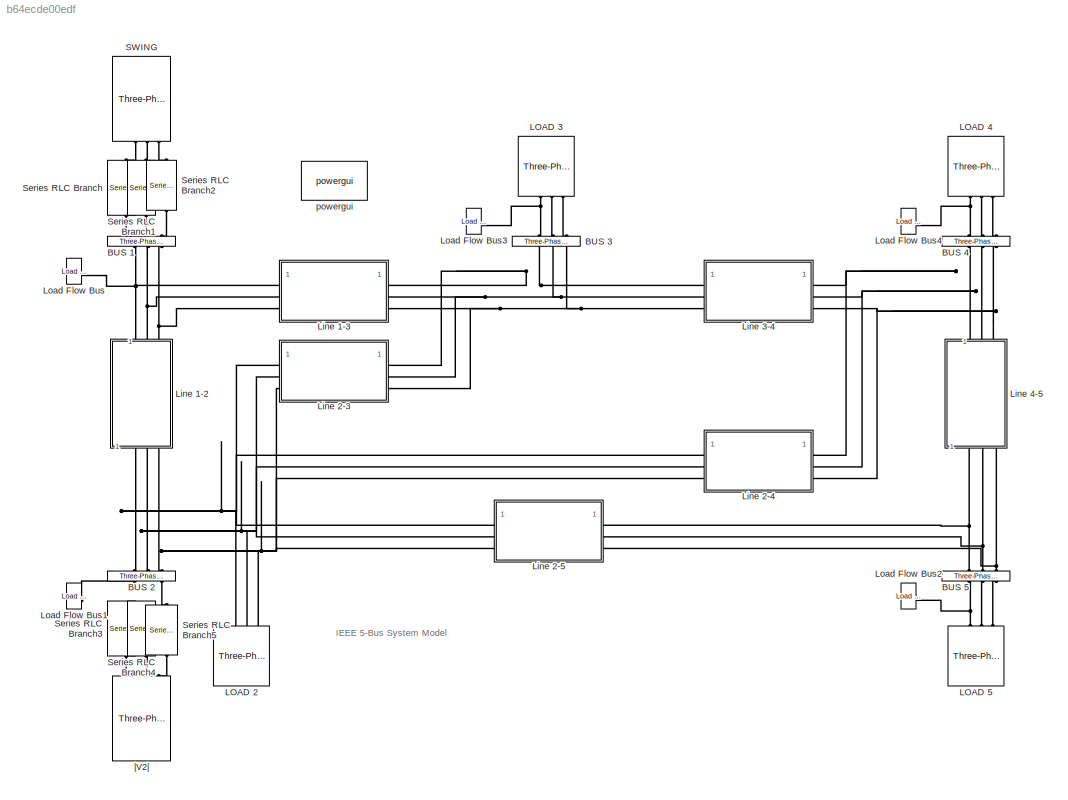
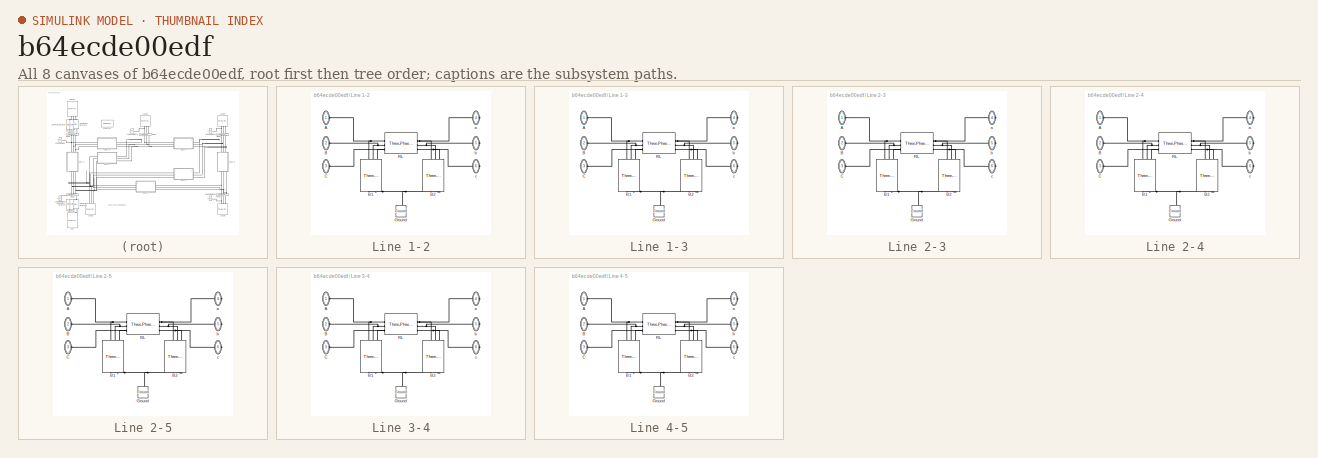
[diagram: thumbnail index - all 8 canvases of the model, root first then tree order]
MODEL slx_b64ecde00edf
KIND model
CONFIG AbsTol = auto
CONFIG EnableMultiTasking = on
CONFIG FixedStep = auto
CONFIG MaxStep = auto
CONFIG MinStep = auto
CONFIG RelTol = 1e-3
CONFIG SampleTimeConstraint = Unconstrained
CONFIG SolverName = VariableStepAuto
CONFIG StartTime = 0.0
CONFIG StopTime = 1
BLOCK [Reference] BUS 1  REF=spsThreePhaseVIMeasurementLib/Three-Phase
V-I Measurement
  LibrarySourceBlock = sps_lib/Sensors and Measurements/Three-Phase\nV-I Measurement
  NameLocation = left
  SourceBlock = spsThreePhaseVIMeasurementLib/Three-Phase\nV-I Measurement
  SourceType = Three-Phase VI Measurement
BLOCK [Reference] BUS 2  REF=spsThreePhaseVIMeasurementLib/Three-Phase
V-I Measurement
  LibrarySourceBlock = sps_lib/Sensors and Measurements/Three-Phase\nV-I Measurement
  NameLocation = left
  SourceBlock = spsThreePhaseVIMeasurementLib/Three-Phase\nV-I Measurement
  SourceType = Three-Phase VI Measurement
BLOCK [Reference] BUS 3  REF=spsThreePhaseVIMeasurementLib/Three-Phase
V-I Measurement
  LibrarySourceBlock = sps_lib/Sensors and Measurements/Three-Phase\nV-I Measurement
  NameLocation = left
  SourceBlock = spsThreePhaseVIMeasurementLib/Three-Phase\nV-I Measurement
  SourceType = Three-Phase VI Measurement
BLOCK [Reference] BUS 4  REF=spsThreePhaseVIMeasurementLib/Three-Phase
V-I Measurement
  LibrarySourceBlock = sps_lib/Sensors and Measurements/Three-Phase\nV-I Measurement
  NameLocation = left
  SourceBlock = spsThreePhaseVIMeasurementLib/Three-Phase\nV-I Measurement
  SourceType = Three-Phase VI Measurement
BLOCK [Reference] BUS 5  REF=spsThreePhaseVIMeasurementLib/Three-Phase
V-I Measurement
  LibrarySourceBlock = sps_lib/Sensors and Measurements/Three-Phase\nV-I Measurement
  NameLocation = left
  SourceBlock = spsThreePhaseVIMeasurementLib/Three-Phase\nV-I Measurement
  SourceType = Three-Phase VI Measurement
BLOCK [Reference] LOAD 2  REF=spsThreePhaseSeriesRLCLoadLib/Three-Phase
Series RLC Load
  AttributesFormatString = \n
  LibrarySourceBlock = sps_lib/Passives/Three-Phase\nSeries RLC Load
  NameLocation = right
  SourceBlock = spsThreePhaseSeriesRLCLoadLib/Three-Phase\nSeries RLC Load
  SourceType = Three-Phase Series RLC Load
BLOCK [Reference] LOAD 3  REF=spsThreePhaseSeriesRLCLoadLib/Three-Phase
Series RLC Load
  AttributesFormatString = \n
  LibrarySourceBlock = sps_lib/Passives/Three-Phase\nSeries RLC Load
  NameLocation = right
  SourceBlock = spsThreePhaseSeriesRLCLoadLib/Three-Phase\nSeries RLC Load
  SourceType = Three-Phase Series RLC Load
BLOCK [Reference] LOAD 4  REF=spsThreePhaseSeriesRLCLoadLib/Three-Phase
Series RLC Load
  AttributesFormatString = \n
  LibrarySourceBlock = sps_lib/Passives/Three-Phase\nSeries RLC Load
  NameLocation = right
  SourceBlock = spsThreePhaseSeriesRLCLoadLib/Three-Phase\nSeries RLC Load
  SourceType = Three-Phase Series RLC Load
BLOCK [Reference] LOAD 5  REF=spsThreePhaseSeriesRLCLoadLib/Three-Phase
Series RLC Load
  AttributesFormatString = \n
  LibrarySourceBlock = sps_lib/Passives/Three-Phase\nSeries RLC Load
  NameLocation = right
  SourceBlock = spsThreePhaseSeriesRLCLoadLib/Three-Phase\nSeries RLC Load
  SourceType = Three-Phase Series RLC Load
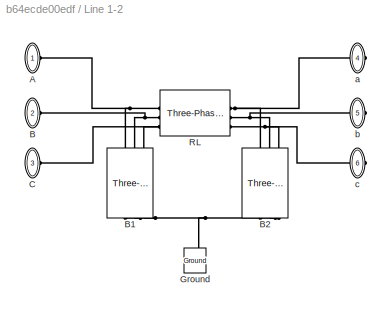
BLOCK [SubSystem] Line 1-2
  NameLocation = right
BLOCK [PMIOPort] Line 1-2/A
  NameLocation = top
  Side = Left
BLOCK [PMIOPort] Line 1-2/B
  NameLocation = top
  Port = 2
  Side = Left
BLOCK [Reference] Line 1-2/B1  REF=spsThreePhaseSeriesRLCBranchLib/Three-Phase
Series RLC Branch
  AttributesFormatString = \n
  LibrarySourceBlock = sps_lib/Passives/Three-Phase\nSeries RLC Branch
  NameLocation = left
  SourceBlock = spsThreePhaseSeriesRLCBranchLib/Three-Phase\nSeries RLC Branch
  SourceType = Three-Phase Series RLC Branch
BLOCK [Reference] Line 1-2/B2  REF=spsThreePhaseSeriesRLCBranchLib/Three-Phase
Series RLC Branch
  AttributesFormatString = \n
  LibrarySourceBlock = sps_lib/Passives/Three-Phase\nSeries RLC Branch
  NameLocation = left
  SourceBlock = spsThreePhaseSeriesRLCBranchLib/Three-Phase\nSeries RLC Branch
  SourceType = Three-Phase Series RLC Branch
BLOCK [PMIOPort] Line 1-2/C
  NameLocation = top
  Port = 3
  Side = Left
BLOCK [Reference] Line 1-2/Ground  REF=spsGroundLib/Ground
  LibrarySourceBlock = sps_lib/Utilities/Ground
  NameLocation = right
  SourceBlock = spsGroundLib/Ground
  SourceType = Ground
BLOCK [Reference] Line 1-2/RL  REF=spsThreePhaseSeriesRLCBranchLib/Three-Phase
Series RLC Branch
  AttributesFormatString = \n
  LibrarySourceBlock = sps_lib/Passives/Three-Phase\nSeries RLC Branch
  SourceBlock = spsThreePhaseSeriesRLCBranchLib/Three-Phase\nSeries RLC Branch
  SourceType = Three-Phase Series RLC Branch
BLOCK [PMIOPort] Line 1-2/a
  NameLocation = top
  Port = 4
  Side = Right
BLOCK [PMIOPort] Line 1-2/b
  NameLocation = top
  Port = 5
  Side = Right
BLOCK [PMIOPort] Line 1-2/c
  NameLocation = top
  Port = 6
  Side = Right
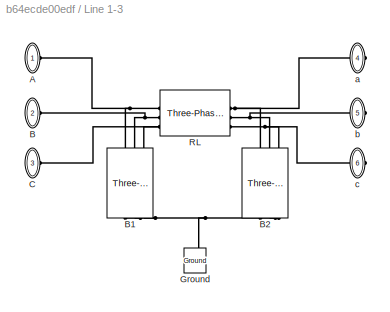
BLOCK [SubSystem] Line 1-3
BLOCK [PMIOPort] Line 1-3/A
  NameLocation = top
  Side = Left
BLOCK [PMIOPort] Line 1-3/B
  NameLocation = top
  Port = 2
  Side = Left
BLOCK [Reference] Line 1-3/B1  REF=spsThreePhaseSeriesRLCBranchLib/Three-Phase
Series RLC Branch
  AttributesFormatString = \n
  LibrarySourceBlock = sps_lib/Passives/Three-Phase\nSeries RLC Branch
  NameLocation = left
  SourceBlock = spsThreePhaseSeriesRLCBranchLib/Three-Phase\nSeries RLC Branch
  SourceType = Three-Phase Series RLC Branch
BLOCK [Reference] Line 1-3/B2  REF=spsThreePhaseSeriesRLCBranchLib/Three-Phase
Series RLC Branch
  AttributesFormatString = \n
  LibrarySourceBlock = sps_lib/Passives/Three-Phase\nSeries RLC Branch
  NameLocation = left
  SourceBlock = spsThreePhaseSeriesRLCBranchLib/Three-Phase\nSeries RLC Branch
  SourceType = Three-Phase Series RLC Branch
BLOCK [PMIOPort] Line 1-3/C
  NameLocation = top
  Port = 3
  Side = Left
BLOCK [Reference] Line 1-3/Ground  REF=spsGroundLib/Ground
  LibrarySourceBlock = sps_lib/Utilities/Ground
  NameLocation = right
  SourceBlock = spsGroundLib/Ground
  SourceType = Ground
BLOCK [Reference] Line 1-3/RL  REF=spsThreePhaseSeriesRLCBranchLib/Three-Phase
Series RLC Branch
  AttributesFormatString = \n
  LibrarySourceBlock = sps_lib/Passives/Three-Phase\nSeries RLC Branch
  SourceBlock = spsThreePhaseSeriesRLCBranchLib/Three-Phase\nSeries RLC Branch
  SourceType = Three-Phase Series RLC Branch
BLOCK [PMIOPort] Line 1-3/a
  NameLocation = top
  Port = 4
  Side = Right
BLOCK [PMIOPort] Line 1-3/b
  NameLocation = top
  Port = 5
  Side = Right
BLOCK [PMIOPort] Line 1-3/c
  NameLocation = top
  Port = 6
  Side = Right
BLOCK [SubSystem] Line 2-3
BLOCK [PMIOPort] Line 2-3/A
  NameLocation = top
  Side = Left
BLOCK [PMIOPort] Line 2-3/B
  NameLocation = top
  Port = 2
  Side = Left
BLOCK [Reference] Line 2-3/B1  REF=spsThreePhaseSeriesRLCBranchLib/Three-Phase
Series RLC Branch
  AttributesFormatString = \n
  LibrarySourceBlock = sps_lib/Passives/Three-Phase\nSeries RLC Branch
  NameLocation = left
  SourceBlock = spsThreePhaseSeriesRLCBranchLib/Three-Phase\nSeries RLC Branch
  SourceType = Three-Phase Series RLC Branch
BLOCK [Reference] Line 2-3/B2  REF=spsThreePhaseSeriesRLCBranchLib/Three-Phase
Series RLC Branch
  AttributesFormatString = \n
  LibrarySourceBlock = sps_lib/Passives/Three-Phase\nSeries RLC Branch
  NameLocation = left
  SourceBlock = spsThreePhaseSeriesRLCBranchLib/Three-Phase\nSeries RLC Branch
  SourceType = Three-Phase Series RLC Branch
BLOCK [PMIOPort] Line 2-3/C
  NameLocation = top
  Port = 3
  Side = Left
BLOCK [Reference] Line 2-3/Ground  REF=spsGroundLib/Ground
  LibrarySourceBlock = sps_lib/Utilities/Ground
  NameLocation = right
  SourceBlock = spsGroundLib/Ground
  SourceType = Ground
BLOCK [Reference] Line 2-3/RL  REF=spsThreePhaseSeriesRLCBranchLib/Three-Phase
Series RLC Branch
  AttributesFormatString = \n
  LibrarySourceBlock = sps_lib/Passives/Three-Phase\nSeries RLC Branch
  SourceBlock = spsThreePhaseSeriesRLCBranchLib/Three-Phase\nSeries RLC Branch
  SourceType = Three-Phase Series RLC Branch
BLOCK [PMIOPort] Line 2-3/a
  NameLocation = top
  Port = 4
  Side = Right
BLOCK [PMIOPort] Line 2-3/b
  NameLocation = top
  Port = 5
  Side = Right
BLOCK [PMIOPort] Line 2-3/c
  NameLocation = top
  Port = 6
  Side = Right
BLOCK [SubSystem] Line 2-4
BLOCK [PMIOPort] Line 2-4/A
  NameLocation = top
  Side = Left
BLOCK [PMIOPort] Line 2-4/B
  NameLocation = top
  Port = 2
  Side = Left
BLOCK [Reference] Line 2-4/B1  REF=spsThreePhaseSeriesRLCBranchLib/Three-Phase
Series RLC Branch
  AttributesFormatString = \n
  LibrarySourceBlock = sps_lib/Passives/Three-Phase\nSeries RLC Branch
  NameLocation = left
  SourceBlock = spsThreePhaseSeriesRLCBranchLib/Three-Phase\nSeries RLC Branch
  SourceType = Three-Phase Series RLC Branch
BLOCK [Reference] Line 2-4/B2  REF=spsThreePhaseSeriesRLCBranchLib/Three-Phase
Series RLC Branch
  AttributesFormatString = \n
  LibrarySourceBlock = sps_lib/Passives/Three-Phase\nSeries RLC Branch
  NameLocation = left
  SourceBlock = spsThreePhaseSeriesRLCBranchLib/Three-Phase\nSeries RLC Branch
  SourceType = Three-Phase Series RLC Branch
BLOCK [PMIOPort] Line 2-4/C
  NameLocation = top
  Port = 3
  Side = Left
BLOCK [Reference] Line 2-4/Ground  REF=spsGroundLib/Ground
  LibrarySourceBlock = sps_lib/Utilities/Ground
  NameLocation = right
  SourceBlock = spsGroundLib/Ground
  SourceType = Ground
BLOCK [Reference] Line 2-4/RL  REF=spsThreePhaseSeriesRLCBranchLib/Three-Phase
Series RLC Branch
  AttributesFormatString = \n
  LibrarySourceBlock = sps_lib/Passives/Three-Phase\nSeries RLC Branch
  SourceBlock = spsThreePhaseSeriesRLCBranchLib/Three-Phase\nSeries RLC Branch
  SourceType = Three-Phase Series RLC Branch
BLOCK [PMIOPort] Line 2-4/a
  NameLocation = top
  Port = 4
  Side = Right
BLOCK [PMIOPort] Line 2-4/b
  NameLocation = top
  Port = 5
  Side = Right
BLOCK [PMIOPort] Line 2-4/c
  NameLocation = top
  Port = 6
  Side = Right
BLOCK [SubSystem] Line 2-5
BLOCK [PMIOPort] Line 2-5/A
  NameLocation = top
  Side = Left
BLOCK [PMIOPort] Line 2-5/B
  NameLocation = top
  Port = 2
  Side = Left
BLOCK [Reference] Line 2-5/B1  REF=spsThreePhaseSeriesRLCBranchLib/Three-Phase
Series RLC Branch
  AttributesFormatString = \n
  LibrarySourceBlock = sps_lib/Passives/Three-Phase\nSeries RLC Branch
  NameLocation = left
  SourceBlock = spsThreePhaseSeriesRLCBranchLib/Three-Phase\nSeries RLC Branch
  SourceType = Three-Phase Series RLC Branch
BLOCK [Reference] Line 2-5/B2  REF=spsThreePhaseSeriesRLCBranchLib/Three-Phase
Series RLC Branch
  AttributesFormatString = \n
  LibrarySourceBlock = sps_lib/Passives/Three-Phase\nSeries RLC Branch
  NameLocation = left
  SourceBlock = spsThreePhaseSeriesRLCBranchLib/Three-Phase\nSeries RLC Branch
  SourceType = Three-Phase Series RLC Branch
BLOCK [PMIOPort] Line 2-5/C
  NameLocation = top
  Port = 3
  Side = Left
BLOCK [Reference] Line 2-5/Ground  REF=spsGroundLib/Ground
  LibrarySourceBlock = sps_lib/Utilities/Ground
  NameLocation = right
  SourceBlock = spsGroundLib/Ground
  SourceType = Ground
BLOCK [Reference] Line 2-5/RL  REF=spsThreePhaseSeriesRLCBranchLib/Three-Phase
Series RLC Branch
  AttributesFormatString = \n
  LibrarySourceBlock = sps_lib/Passives/Three-Phase\nSeries RLC Branch
  SourceBlock = spsThreePhaseSeriesRLCBranchLib/Three-Phase\nSeries RLC Branch
  SourceType = Three-Phase Series RLC Branch
BLOCK [PMIOPort] Line 2-5/a
  NameLocation = top
  Port = 4
  Side = Right
BLOCK [PMIOPort] Line 2-5/b
  NameLocation = top
  Port = 5
  Side = Right
BLOCK [PMIOPort] Line 2-5/c
  NameLocation = top
  Port = 6
  Side = Right
BLOCK [SubSystem] Line 3-4
BLOCK [PMIOPort] Line 3-4/A
  NameLocation = top
  Side = Left
BLOCK [PMIOPort] Line 3-4/B
  NameLocation = top
  Port = 2
  Side = Left
BLOCK [Reference] Line 3-4/B1  REF=spsThreePhaseSeriesRLCBranchLib/Three-Phase
Series RLC Branch
  AttributesFormatString = \n
  LibrarySourceBlock = sps_lib/Passives/Three-Phase\nSeries RLC Branch
  NameLocation = left
  SourceBlock = spsThreePhaseSeriesRLCBranchLib/Three-Phase\nSeries RLC Branch
  SourceType = Three-Phase Series RLC Branch
BLOCK [Reference] Line 3-4/B2  REF=spsThreePhaseSeriesRLCBranchLib/Three-Phase
Series RLC Branch
  AttributesFormatString = \n
  LibrarySourceBlock = sps_lib/Passives/Three-Phase\nSeries RLC Branch
  NameLocation = left
  SourceBlock = spsThreePhaseSeriesRLCBranchLib/Three-Phase\nSeries RLC Branch
  SourceType = Three-Phase Series RLC Branch
BLOCK [PMIOPort] Line 3-4/C
  NameLocation = top
  Port = 3
  Side = Left
BLOCK [Reference] Line 3-4/Ground  REF=spsGroundLib/Ground
  LibrarySourceBlock = sps_lib/Utilities/Ground
  NameLocation = right
  SourceBlock = spsGroundLib/Ground
  SourceType = Ground
BLOCK [Reference] Line 3-4/RL  REF=spsThreePhaseSeriesRLCBranchLib/Three-Phase
Series RLC Branch
  AttributesFormatString = \n
  LibrarySourceBlock = sps_lib/Passives/Three-Phase\nSeries RLC Branch
  SourceBlock = spsThreePhaseSeriesRLCBranchLib/Three-Phase\nSeries RLC Branch
  SourceType = Three-Phase Series RLC Branch
BLOCK [PMIOPort] Line 3-4/a
  NameLocation = top
  Port = 4
  Side = Right
BLOCK [PMIOPort] Line 3-4/b
  NameLocation = top
  Port = 5
  Side = Right
BLOCK [PMIOPort] Line 3-4/c
  NameLocation = top
  Port = 6
  Side = Right
BLOCK [SubSystem] Line 4-5
  NameLocation = right
BLOCK [PMIOPort] Line 4-5/A
  NameLocation = top
  Side = Left
BLOCK [PMIOPort] Line 4-5/B
  NameLocation = top
  Port = 2
  Side = Left
BLOCK [Reference] Line 4-5/B1  REF=spsThreePhaseSeriesRLCBranchLib/Three-Phase
Series RLC Branch
  AttributesFormatString = \n
  LibrarySourceBlock = sps_lib/Passives/Three-Phase\nSeries RLC Branch
  NameLocation = left
  SourceBlock = spsThreePhaseSeriesRLCBranchLib/Three-Phase\nSeries RLC Branch
  SourceType = Three-Phase Series RLC Branch
BLOCK [Reference] Line 4-5/B2  REF=spsThreePhaseSeriesRLCBranchLib/Three-Phase
Series RLC Branch
  AttributesFormatString = \n
  LibrarySourceBlock = sps_lib/Passives/Three-Phase\nSeries RLC Branch
  NameLocation = left
  SourceBlock = spsThreePhaseSeriesRLCBranchLib/Three-Phase\nSeries RLC Branch
  SourceType = Three-Phase Series RLC Branch
BLOCK [PMIOPort] Line 4-5/C
  NameLocation = top
  Port = 3
  Side = Left
BLOCK [Reference] Line 4-5/Ground  REF=spsGroundLib/Ground
  LibrarySourceBlock = sps_lib/Utilities/Ground
  NameLocation = right
  SourceBlock = spsGroundLib/Ground
  SourceType = Ground
BLOCK [Reference] Line 4-5/RL  REF=spsThreePhaseSeriesRLCBranchLib/Three-Phase
Series RLC Branch
  AttributesFormatString = \n
  LibrarySourceBlock = sps_lib/Passives/Three-Phase\nSeries RLC Branch
  SourceBlock = spsThreePhaseSeriesRLCBranchLib/Three-Phase\nSeries RLC Branch
  SourceType = Three-Phase Series RLC Branch
BLOCK [PMIOPort] Line 4-5/a
  NameLocation = top
  Port = 4
  Side = Right
BLOCK [PMIOPort] Line 4-5/b
  NameLocation = top
  Port = 5
  Side = Right
BLOCK [PMIOPort] Line 4-5/c
  NameLocation = top
  Port = 6
  Side = Right
BLOCK [Reference] Load Flow Bus  REF=spsLoadFlowBusLib/Load Flow Bus
  AttributesFormatString = %<ID>\n%<Vbase>V\n%<VLF>pu\n%<angleLF>deg.
  LibrarySourceBlock = sps_lib/Utilities/Load Flow Bus
  SourceBlock = spsLoadFlowBusLib/Load Flow Bus
  SourceType = Load Flow Bus
BLOCK [Reference] Load Flow Bus1  REF=spsLoadFlowBusLib/Load Flow Bus
  AttributesFormatString = %<ID>\n%<Vbase>V\n%<VLF>pu\n%<angleLF>deg.
  LibrarySourceBlock = sps_lib/Utilities/Load Flow Bus
  SourceBlock = spsLoadFlowBusLib/Load Flow Bus
  SourceType = Load Flow Bus
BLOCK [Reference] Load Flow Bus2  REF=spsLoadFlowBusLib/Load Flow Bus
  AttributesFormatString = %<ID>\n%<Vbase>V\n%<VLF>pu\n%<angleLF>deg.
  LibrarySourceBlock = sps_lib/Utilities/Load Flow Bus
  SourceBlock = spsLoadFlowBusLib/Load Flow Bus
  SourceType = Load Flow Bus
BLOCK [Reference] Load Flow Bus3  REF=spsLoadFlowBusLib/Load Flow Bus
  AttributesFormatString = %<ID>\n%<Vbase>V\n%<VLF>pu\n%<angleLF>deg.
  LibrarySourceBlock = sps_lib/Utilities/Load Flow Bus
  NameLocation = top
  SourceBlock = spsLoadFlowBusLib/Load Flow Bus
  SourceType = Load Flow Bus
BLOCK [Reference] Load Flow Bus4  REF=spsLoadFlowBusLib/Load Flow Bus
  AttributesFormatString = %<ID>\n%<Vbase>V\n%<VLF>pu\n%<angleLF>deg.
  LibrarySourceBlock = sps_lib/Utilities/Load Flow Bus
  NameLocation = top
  SourceBlock = spsLoadFlowBusLib/Load Flow Bus
  SourceType = Load Flow Bus
BLOCK [Reference] SWING  REF=spsThreePhaseSourceLib/Three-Phase Source
  LibrarySourceBlock = sps_lib/Sources/Three-Phase Source
  NameLocation = left
  SourceBlock = spsThreePhaseSourceLib/Three-Phase Source
  SourceType = Three-Phase Source
BLOCK [Reference] Series RLC Branch  REF=spsSeriesRLCBranchLib/Series RLC Branch
  LibrarySourceBlock = sps_lib/Passives/Series RLC Branch
  NameLocation = left
  SourceBlock = spsSeriesRLCBranchLib/Series RLC Branch
  SourceType = Series RLC Branch
BLOCK [Reference] Series RLC Branch1  REF=spsSeriesRLCBranchLib/Series RLC Branch
  LibrarySourceBlock = sps_lib/Passives/Series RLC Branch
  NameLocation = left
  SourceBlock = spsSeriesRLCBranchLib/Series RLC Branch
  SourceType = Series RLC Branch
BLOCK [Reference] Series RLC Branch2  REF=spsSeriesRLCBranchLib/Series RLC Branch
  LibrarySourceBlock = sps_lib/Passives/Series RLC Branch
  NameLocation = left
  SourceBlock = spsSeriesRLCBranchLib/Series RLC Branch
  SourceType = Series RLC Branch
BLOCK [Reference] Series RLC Branch3  REF=spsSeriesRLCBranchLib/Series RLC Branch
  LibrarySourceBlock = sps_lib/Passives/Series RLC Branch
  NameLocation = left
  SourceBlock = spsSeriesRLCBranchLib/Series RLC Branch
  SourceType = Series RLC Branch
BLOCK [Reference] Series RLC Branch4  REF=spsSeriesRLCBranchLib/Series RLC Branch
  LibrarySourceBlock = sps_lib/Passives/Series RLC Branch
  NameLocation = left
  SourceBlock = spsSeriesRLCBranchLib/Series RLC Branch
  SourceType = Series RLC Branch
BLOCK [Reference] Series RLC Branch5  REF=spsSeriesRLCBranchLib/Series RLC Branch
  LibrarySourceBlock = sps_lib/Passives/Series RLC Branch
  SourceBlock = spsSeriesRLCBranchLib/Series RLC Branch
  SourceType = Series RLC Branch
BLOCK [Reference] powergui  REF=sps_lib/powergui
  Priority = 1
  SourceBlock = sps_lib/powergui
  SourceType = PSB option menu block
BLOCK [Reference] |V2|  REF=spsThreePhaseSourceLib/Three-Phase Source
  LibrarySourceBlock = sps_lib/Sources/Three-Phase Source
  NameLocation = right
  SourceBlock = spsThreePhaseSourceLib/Three-Phase Source
  SourceType = Three-Phase Source
ANNOTATION (root): IEEE 5-Bus System Model
PLINE BUS 1:LConn1 -- Series RLC Branch:RConn1
PLINE BUS 1:LConn2 -- Series RLC Branch1:RConn1
PLINE BUS 1:LConn3 -- Series RLC Branch2:RConn1
PNET net1: BUS 1:RConn1 -- Line 1-2:RConn1 -- Line 1-3:LConn1 -- Load Flow Bus:LConn1
PNET net2: BUS 1:RConn2 -- Line 1-2:RConn2 -- Line 1-3:LConn2
PNET net3: BUS 1:RConn3 -- Line 1-2:RConn3 -- Line 1-3:LConn3
PNET net4: BUS 2:LConn1 -- LOAD 2:LConn1 -- Line 1-2:LConn1 -- Line 2-3:LConn1 -- Line 2-4:LConn1 -- Line 2-5:LConn1
PNET net5: BUS 2:LConn2 -- LOAD 2:LConn2 -- Line 1-2:LConn2 -- Line 2-3:LConn2 -- Line 2-4:LConn2 -- Line 2-5:LConn2
PNET net6: BUS 2:LConn3 -- LOAD 2:LConn3 -- Line 1-2:LConn3 -- Line 2-3:LConn3 -- Line 2-4:LConn3 -- Line 2-5:LConn3
PLINE BUS 2:RConn1 -- Load Flow Bus1:LConn1
PLINE BUS 2:RConn3 -- Series RLC Branch5:LConn1
PNET net7: BUS 3:LConn1 -- LOAD 3:LConn1 -- Load Flow Bus3:LConn1
PLINE BUS 3:LConn2 -- LOAD 3:LConn2
PLINE BUS 3:LConn3 -- LOAD 3:LConn3
PNET net8: BUS 3:RConn1 -- Line 1-3:RConn1 -- Line 2-3:RConn1 -- Line 3-4:LConn1
PNET net9: BUS 3:RConn2 -- Line 1-3:RConn2 -- Line 2-3:RConn2 -- Line 3-4:LConn2
PNET net10: BUS 3:RConn3 -- Line 1-3:RConn3 -- Line 2-3:RConn3 -- Line 3-4:LConn3
PNET net11: BUS 4:LConn1 -- LOAD 4:LConn1 -- Load Flow Bus4:LConn1
PLINE BUS 4:LConn2 -- LOAD 4:LConn2
PLINE BUS 4:LConn3 -- LOAD 4:LConn3
PNET net12: BUS 4:RConn1 -- Line 2-4:RConn1 -- Line 3-4:RConn1 -- Line 4-5:RConn1
PNET net13: BUS 4:RConn2 -- Line 2-4:RConn2 -- Line 3-4:RConn2 -- Line 4-5:RConn2
PNET net14: BUS 4:RConn3 -- Line 2-4:RConn3 -- Line 3-4:RConn3 -- Line 4-5:RConn3
PNET net15: BUS 5:LConn1 -- Line 2-5:RConn1 -- Line 4-5:LConn1
PNET net16: BUS 5:LConn2 -- Line 2-5:RConn2 -- Line 4-5:LConn2
PNET net17: BUS 5:LConn3 -- Line 2-5:RConn3 -- Line 4-5:LConn3
PNET net18: BUS 5:RConn1 -- LOAD 5:LConn1 -- Load Flow Bus2:LConn1
PLINE BUS 5:RConn2 -- LOAD 5:LConn2
PLINE BUS 5:RConn3 -- LOAD 5:LConn3
PNET net19: Line 1-2/A:RConn1 -- Line 1-2/B1:LConn1 -- Line 1-2/RL:LConn1
PNET net20: Line 1-2/B1:LConn2 -- Line 1-2/B:RConn1 -- Line 1-2/RL:LConn2
PNET net21: Line 1-2/B1:LConn3 -- Line 1-2/C:RConn1 -- Line 1-2/RL:LConn3
PNET net22: Line 1-2/B1:RConn1 -- Line 1-2/B1:RConn2 -- Line 1-2/B1:RConn3 -- Line 1-2/B2:RConn1 -- Line 1-2/B2:RConn2 -- Line 1-2/B2:RConn3 -- Line 1-2/Ground:LConn1
PNET net23: Line 1-2/B2:LConn1 -- Line 1-2/RL:RConn1 -- Line 1-2/a:RConn1
PNET net24: Line 1-2/B2:LConn2 -- Line 1-2/RL:RConn2 -- Line 1-2/b:RConn1
PNET net25: Line 1-2/B2:LConn3 -- Line 1-2/RL:RConn3 -- Line 1-2/c:RConn1
PNET net26: Line 1-3/A:RConn1 -- Line 1-3/B1:LConn1 -- Line 1-3/RL:LConn1
PNET net27: Line 1-3/B1:LConn2 -- Line 1-3/B:RConn1 -- Line 1-3/RL:LConn2
PNET net28: Line 1-3/B1:LConn3 -- Line 1-3/C:RConn1 -- Line 1-3/RL:LConn3
PNET net29: Line 1-3/B1:RConn1 -- Line 1-3/B1:RConn2 -- Line 1-3/B1:RConn3 -- Line 1-3/B2:RConn1 -- Line 1-3/B2:RConn2 -- Line 1-3/B2:RConn3 -- Line 1-3/Ground:LConn1
PNET net30: Line 1-3/B2:LConn1 -- Line 1-3/RL:RConn1 -- Line 1-3/a:RConn1
PNET net31: Line 1-3/B2:LConn2 -- Line 1-3/RL:RConn2 -- Line 1-3/b:RConn1
PNET net32: Line 1-3/B2:LConn3 -- Line 1-3/RL:RConn3 -- Line 1-3/c:RConn1
PNET net33: Line 2-3/A:RConn1 -- Line 2-3/B1:LConn1 -- Line 2-3/RL:LConn1
PNET net34: Line 2-3/B1:LConn2 -- Line 2-3/B:RConn1 -- Line 2-3/RL:LConn2
PNET net35: Line 2-3/B1:LConn3 -- Line 2-3/C:RConn1 -- Line 2-3/RL:LConn3
PNET net36: Line 2-3/B1:RConn1 -- Line 2-3/B1:RConn2 -- Line 2-3/B1:RConn3 -- Line 2-3/B2:RConn1 -- Line 2-3/B2:RConn2 -- Line 2-3/B2:RConn3 -- Line 2-3/Ground:LConn1
PNET net37: Line 2-3/B2:LConn1 -- Line 2-3/RL:RConn1 -- Line 2-3/a:RConn1
PNET net38: Line 2-3/B2:LConn2 -- Line 2-3/RL:RConn2 -- Line 2-3/b:RConn1
PNET net39: Line 2-3/B2:LConn3 -- Line 2-3/RL:RConn3 -- Line 2-3/c:RConn1
PNET net40: Line 2-4/A:RConn1 -- Line 2-4/B1:LConn1 -- Line 2-4/RL:LConn1
PNET net41: Line 2-4/B1:LConn2 -- Line 2-4/B:RConn1 -- Line 2-4/RL:LConn2
PNET net42: Line 2-4/B1:LConn3 -- Line 2-4/C:RConn1 -- Line 2-4/RL:LConn3
PNET net43: Line 2-4/B1:RConn1 -- Line 2-4/B1:RConn2 -- Line 2-4/B1:RConn3 -- Line 2-4/B2:RConn1 -- Line 2-4/B2:RConn2 -- Line 2-4/B2:RConn3 -- Line 2-4/Ground:LConn1
PNET net44: Line 2-4/B2:LConn1 -- Line 2-4/RL:RConn1 -- Line 2-4/a:RConn1
PNET net45: Line 2-4/B2:LConn2 -- Line 2-4/RL:RConn2 -- Line 2-4/b:RConn1
PNET net46: Line 2-4/B2:LConn3 -- Line 2-4/RL:RConn3 -- Line 2-4/c:RConn1
PNET net47: Line 2-5/A:RConn1 -- Line 2-5/B1:LConn1 -- Line 2-5/RL:LConn1
PNET net48: Line 2-5/B1:LConn2 -- Line 2-5/B:RConn1 -- Line 2-5/RL:LConn2
PNET net49: Line 2-5/B1:LConn3 -- Line 2-5/C:RConn1 -- Line 2-5/RL:LConn3
PNET net50: Line 2-5/B1:RConn1 -- Line 2-5/B1:RConn2 -- Line 2-5/B1:RConn3 -- Line 2-5/B2:RConn1 -- Line 2-5/B2:RConn2 -- Line 2-5/B2:RConn3 -- Line 2-5/Ground:LConn1
PNET net51: Line 2-5/B2:LConn1 -- Line 2-5/RL:RConn1 -- Line 2-5/a:RConn1
PNET net52: Line 2-5/B2:LConn2 -- Line 2-5/RL:RConn2 -- Line 2-5/b:RConn1
PNET net53: Line 2-5/B2:LConn3 -- Line 2-5/RL:RConn3 -- Line 2-5/c:RConn1
PNET net54: Line 3-4/A:RConn1 -- Line 3-4/B1:LConn1 -- Line 3-4/RL:LConn1
PNET net55: Line 3-4/B1:LConn2 -- Line 3-4/B:RConn1 -- Line 3-4/RL:LConn2
PNET net56: Line 3-4/B1:LConn3 -- Line 3-4/C:RConn1 -- Line 3-4/RL:LConn3
PNET net57: Line 3-4/B1:RConn1 -- Line 3-4/B1:RConn2 -- Line 3-4/B1:RConn3 -- Line 3-4/B2:RConn1 -- Line 3-4/B2:RConn2 -- Line 3-4/B2:RConn3 -- Line 3-4/Ground:LConn1
PNET net58: Line 3-4/B2:LConn1 -- Line 3-4/RL:RConn1 -- Line 3-4/a:RConn1
PNET net59: Line 3-4/B2:LConn2 -- Line 3-4/RL:RConn2 -- Line 3-4/b:RConn1
PNET net60: Line 3-4/B2:LConn3 -- Line 3-4/RL:RConn3 -- Line 3-4/c:RConn1
PNET net61: Line 4-5/A:RConn1 -- Line 4-5/B1:LConn1 -- Line 4-5/RL:LConn1
PNET net62: Line 4-5/B1:LConn2 -- Line 4-5/B:RConn1 -- Line 4-5/RL:LConn2
PNET net63: Line 4-5/B1:LConn3 -- Line 4-5/C:RConn1 -- Line 4-5/RL:LConn3
PNET net64: Line 4-5/B1:RConn1 -- Line 4-5/B1:RConn2 -- Line 4-5/B1:RConn3 -- Line 4-5/B2:RConn1 -- Line 4-5/B2:RConn2 -- Line 4-5/B2:RConn3 -- Line 4-5/Ground:LConn1
PNET net65: Line 4-5/B2:LConn1 -- Line 4-5/RL:RConn1 -- Line 4-5/a:RConn1
PNET net66: Line 4-5/B2:LConn2 -- Line 4-5/RL:RConn2 -- Line 4-5/b:RConn1
PNET net67: Line 4-5/B2:LConn3 -- Line 4-5/RL:RConn3 -- Line 4-5/c:RConn1
PLINE SWING:RConn1 -- Series RLC Branch:LConn1
PLINE SWING:RConn2 -- Series RLC Branch1:LConn1
PLINE SWING:RConn3 -- Series RLC Branch2:LConn1
PLINE Series RLC Branch3:RConn1 -- |V2|:RConn1
PLINE Series RLC Branch4:RConn1 -- |V2|:RConn2
PLINE Series RLC Branch5:RConn1 -- |V2|:RConn3
note: PNET lines group multi-terminal physical nets as a canonical sorted terminal list (undirected conserving connections); 2-terminal nets keep the pairwise PLINE form
